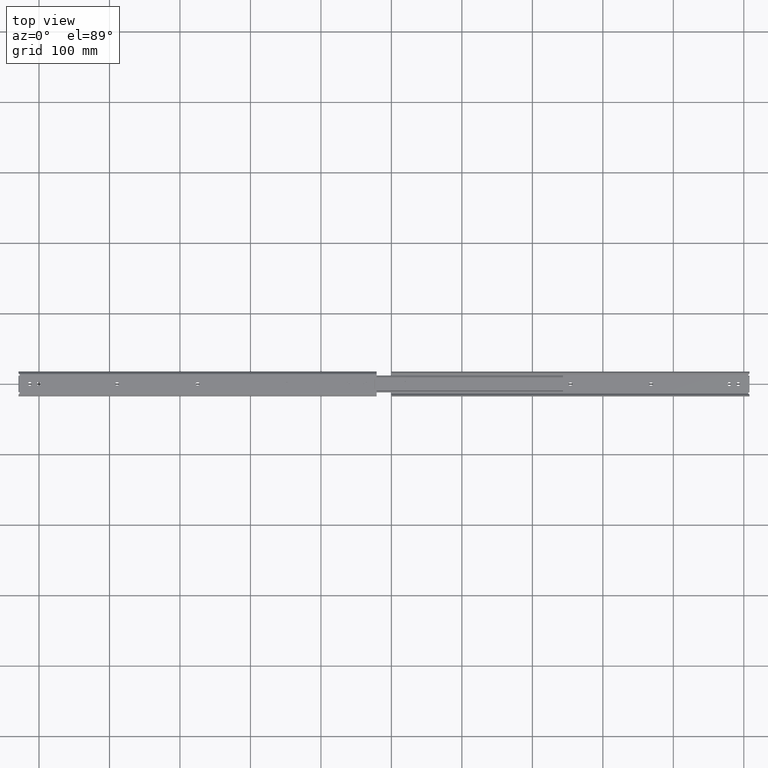
[diagram: clean part render]
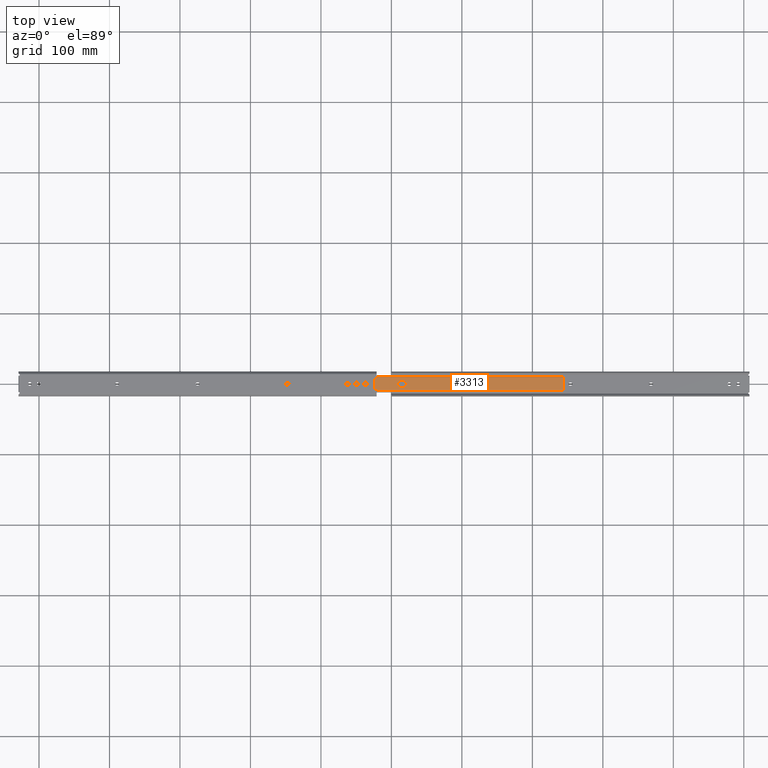
[diagram: same view with one face highlighted and labeled with its STEP entity id]
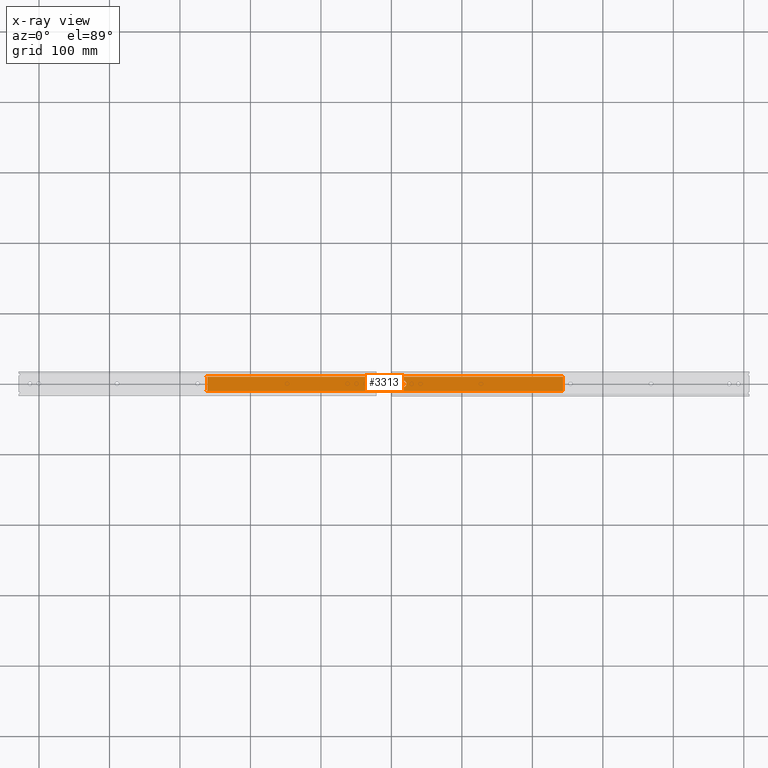
[diagram: x-ray of the same camera — body ghosted, the highlighted face saturated]
A machine part, top view. The second image highlights one B-rep face of the part: STEP entity #3313.
The next image is the same camera in x-ray: the body ghosted, the highlighted face saturated — about 0% of this face is hidden behind the body in this view.
In plain terms, the highlighted planar face has unit normal (0, 0, -1).
Its self-contained STEP definition (entity closure, byte-faithful):
#13 = AXIS2_PLACEMENT_3D ( 'NONE', #2778, #193, #2794 ) ;
#62 = VECTOR ( 'NONE', #1196, 1000.000000000000000 ) ;
#100 = ORIENTED_EDGE ( 'NONE', *, *, #1362, .T. ) ;
#193 = DIRECTION ( 'NONE',  ( 0.0000000000000000000, 6.982962677686266700E-015, -1.000000000000000000 ) ) ;
#283 = DIRECTION ( 'NONE',  ( 1.000000000000000000, -6.982962677686266700E-015, -4.876176775795935800E-029 ) ) ;
#284 = CARTESIAN_POINT ( 'NONE',  ( 37.49999999999995000, -4.750000000000057700, -7.999999999999739800 ) ) ;
#401 = EDGE_CURVE ( 'NONE', #4238, #3875, #676, .T. ) ;
#443 = VERTEX_POINT ( 'NONE', #497 ) ;
#468 = AXIS2_PLACEMENT_3D ( 'NONE', #1770, #4331, #2137 ) ;
#472 = EDGE_CURVE ( 'NONE', #2080, #2167, #1595, .T. ) ;
#497 = CARTESIAN_POINT ( 'NONE',  ( -241.9000000000001200, -9.699999999998132300, -7.999999999999774400 ) ) ;
#504 = VERTEX_POINT ( 'NONE', #3728 ) ;
#557 = EDGE_CURVE ( 'NONE', #3875, #2109, #3093, .T. ) ;
#577 = DIRECTION ( 'NONE',  ( 6.982962677686267500E-015, 1.000000000000000000, 6.982962677686267500E-015 ) ) ;
#623 = EDGE_CURVE ( 'NONE', #2167, #443, #2986, .T. ) ;
#665 = ORIENTED_EDGE ( 'NONE', *, *, #1288, .T. ) ;
#670 = ORIENTED_EDGE ( 'NONE', *, *, #3320, .T. ) ;
#676 = LINE ( 'NONE', #4096, #4480 ) ;
#732 = CARTESIAN_POINT ( 'NONE',  ( 264.4999999999998900, -10.32509259386357100, -7.999999999999779700 ) ) ;
#764 = CARTESIAN_POINT ( 'NONE',  ( -241.9000000000000100, 1.873927478161559500E-012, -7.999999999999706900 ) ) ;
#776 = DIRECTION ( 'NONE',  ( 6.982962677686267500E-015, 1.000000000000000000, 6.982962677686267500E-015 ) ) ;
#808 = FACE_BOUND ( 'NONE', #2073, .T. ) ;
#861 = VERTEX_POINT ( 'NONE', #2933 ) ;
#904 = DIRECTION ( 'NONE',  ( 6.982962677686267500E-015, 1.000000000000000000, 6.982962677686267500E-015 ) ) ;
#958 = EDGE_CURVE ( 'NONE', #2109, #2350, #2570, .T. ) ;
#965 = DIRECTION ( 'NONE',  ( -1.000000000000000000, 8.067164850171739600E-015, 5.633271106349179200E-029 ) ) ;
#977 = DIRECTION ( 'NONE',  ( -6.982962677686266700E-015, -1.000000000000000000, -6.982962677686266700E-015 ) ) ;
#983 = VECTOR ( 'NONE', #3677, 1000.000000000000000 ) ;
#1017 = CARTESIAN_POINT ( 'NONE',  ( -241.9000000000000100, -4.749999999998031800, -7.999999999999739800 ) ) ;
#1028 = CARTESIAN_POINT ( 'NONE',  ( -240.3000000000000700, -8.199999999998137700, -7.999999999999764600 ) ) ;
#1038 = EDGE_CURVE ( 'NONE', #4703, #443, #4056, .T. ) ;
#1111 = CARTESIAN_POINT ( 'NONE',  ( -241.9000000000001200, -10.32509259386003600, -7.999999999999779700 ) ) ;
#1145 = DIRECTION ( 'NONE',  ( 1.000000000000000000, -6.982962677686266700E-015, -4.876176775795935800E-029 ) ) ;
#1148 = DIRECTION ( 'NONE',  ( 1.000000000000000000, -7.254013220807639700E-015, -5.065450358434250000E-029 ) ) ;
#1161 = ORIENTED_EDGE ( 'NONE', *, *, #2100, .T. ) ;
#1172 = VECTOR ( 'NONE', #904, 1000.000000000000000 ) ;
#1196 = DIRECTION ( 'NONE',  ( -6.982962677686266700E-015, -1.000000000000000000, -6.982962677686266700E-015 ) ) ;
#1210 = VERTEX_POINT ( 'NONE', #732 ) ;
#1213 = ORIENTED_EDGE ( 'NONE', *, *, #3214, .F. ) ;
#1288 = EDGE_CURVE ( 'NONE', #3562, #2080, #2043, .T. ) ;
#1309 = ORIENTED_EDGE ( 'NONE', *, *, #623, .T. ) ;
#1362 = EDGE_CURVE ( 'NONE', #2350, #2713, #1691, .T. ) ;
#1478 = VECTOR ( 'NONE', #3034, 1000.000000000000000 ) ;
#1532 = CARTESIAN_POINT ( 'NONE',  ( -240.2999999999998400, 9.700000000001855600, -7.999999999999639400 ) ) ;
#1542 = ORIENTED_EDGE ( 'NONE', *, *, #2023, .T. ) ;
#1595 = LINE ( 'NONE', #1697, #1478 ) ;
#1668 = VERTEX_POINT ( 'NONE', #1918 ) ;
#1686 = CIRCLE ( 'NONE', #468, 4.750000000000000900 ) ;
#1691 = CIRCLE ( 'NONE', #2991, 4.750000000000000900 ) ;
#1697 = CARTESIAN_POINT ( 'NONE',  ( -240.2999999999999500, 1.862754737877261200E-012, -7.999999999999706900 ) ) ;
#1770 = CARTESIAN_POINT ( 'NONE',  ( 34.29999999999994000, -3.909835357832166500E-015, -7.999999999999706900 ) ) ;
#1806 = VECTOR ( 'NONE', #977, 1000.000000000000000 ) ;
#1862 = LINE ( 'NONE', #1111, #983 ) ;
#1886 = VECTOR ( 'NONE', #965, 1000.000000000000000 ) ;
#1918 = CARTESIAN_POINT ( 'NONE',  ( 264.5000000000000000, 10.32509259386024800, -7.999999999999634100 ) ) ;
#1944 = DIRECTION ( 'NONE',  ( 0.0000000000000000000, 6.982962677686266700E-015, -1.000000000000000000 ) ) ;
#1945 = DIRECTION ( 'NONE',  ( -1.000000000000000000, 6.982962677686269100E-015, 0.0000000000000000000 ) ) ;
#1958 = DIRECTION ( 'NONE',  ( -1.000000000000000000, 6.982962677686264300E-015, 0.0000000000000000000 ) ) ;
#2019 = AXIS2_PLACEMENT_3D ( 'NONE', #2054, #2265, #1945 ) ;
#2023 = EDGE_CURVE ( 'NONE', #3672, #3562, #4732, .T. ) ;
#2043 = LINE ( 'NONE', #3406, #62 ) ;
#2054 = CARTESIAN_POINT ( 'NONE',  ( 37.49999999999997900, -2.684314639001914600E-014, -7.999999999999706900 ) ) ;
#2057 = CARTESIAN_POINT ( 'NONE',  ( 34.29999999999996900, 4.749999999999964500, -7.999999999999674000 ) ) ;
#2073 = EDGE_LOOP ( 'NONE', ( #2954, #4355, #3005, #100, #1161 ) ) ;
#2080 = VERTEX_POINT ( 'NONE', #1028 ) ;
#2094 = VECTOR ( 'NONE', #776, 1000.000000000000000 ) ;
#2100 = EDGE_CURVE ( 'NONE', #2713, #4238, #1686, .T. ) ;
#2109 = VERTEX_POINT ( 'NONE', #284 ) ;
#2125 = ORIENTED_EDGE ( 'NONE', *, *, #1038, .F. ) ;
#2127 = LINE ( 'NONE', #4194, #1172 ) ;
#2136 = CARTESIAN_POINT ( 'NONE',  ( -241.8999999999998900, 9.700000000001864500, -7.999999999999639400 ) ) ;
#2137 = DIRECTION ( 'NONE',  ( -1.000000000000000000, 6.982962677686264300E-015, 0.0000000000000000000 ) ) ;
#2167 = VERTEX_POINT ( 'NONE', #3656 ) ;
#2171 = ORIENTED_EDGE ( 'NONE', *, *, #472, .T. ) ;
#2265 = DIRECTION ( 'NONE',  ( 0.0000000000000000000, 6.982962677686266700E-015, -1.000000000000000000 ) ) ;
#2350 = VERTEX_POINT ( 'NONE', #3119 ) ;
#2410 = PLANE ( 'NONE',  #13 ) ;
#2469 = VECTOR ( 'NONE', #283, 1000.000000000000000 ) ;
#2570 = LINE ( 'NONE', #1017, #3326 ) ;
#2599 = CARTESIAN_POINT ( 'NONE',  ( 37.50000000000000700, 4.749999999999941400, -7.999999999999674000 ) ) ;
#2606 = CARTESIAN_POINT ( 'NONE',  ( -241.8999999999998900, 10.32509259386378500, -7.999999999999634100 ) ) ;
#2619 = CARTESIAN_POINT ( 'NONE',  ( 29.54999999999994000, 3.484560750332767100E-014, -7.999999999999706900 ) ) ;
#2626 = EDGE_CURVE ( 'NONE', #4703, #1210, #1862, .T. ) ;
#2659 = VECTOR ( 'NONE', #577, 1000.000000000000000 ) ;
#2691 = EDGE_CURVE ( 'NONE', #504, #1668, #3581, .T. ) ;
#2713 = VERTEX_POINT ( 'NONE', #2619 ) ;
#2778 = CARTESIAN_POINT ( 'NONE',  ( -241.9000000000000100, 1.873927478161559500E-012, -7.999999999999706900 ) ) ;
#2794 = DIRECTION ( 'NONE',  ( -1.000000000000000000, 6.982962677686266700E-015, 4.876176775795935800E-029 ) ) ;
#2933 = CARTESIAN_POINT ( 'NONE',  ( -241.8999999999998900, 9.700000000001860900, -7.999999999999639400 ) ) ;
#2954 = ORIENTED_EDGE ( 'NONE', *, *, #401, .T. ) ;
#2986 = LINE ( 'NONE', #3411, #1886 ) ;
#2991 = AXIS2_PLACEMENT_3D ( 'NONE', #3091, #1944, #1958 ) ;
#3005 = ORIENTED_EDGE ( 'NONE', *, *, #958, .T. ) ;
#3034 = DIRECTION ( 'NONE',  ( -6.982962677686266700E-015, -1.000000000000000000, -6.982962677686266700E-015 ) ) ;
#3091 = CARTESIAN_POINT ( 'NONE',  ( 34.29999999999994000, -3.909835357832166500E-015, -7.999999999999706900 ) ) ;
#3093 = CIRCLE ( 'NONE', #2019, 4.749999999999997300 ) ;
#3119 = CARTESIAN_POINT ( 'NONE',  ( 34.29999999999991200, -4.750000000000035500, -7.999999999999739800 ) ) ;
#3130 = EDGE_CURVE ( 'NONE', #861, #3672, #4433, .T. ) ;
#3160 = CARTESIAN_POINT ( 'NONE',  ( 264.4999999999999400, -1.662244821818765700E-012, -7.999999999999706900 ) ) ;
#3214 = EDGE_CURVE ( 'NONE', #861, #504, #2127, .T. ) ;
#3313 = ADVANCED_FACE ( 'NONE', ( #808, #3745 ), #2410, .F. ) ;
#3320 = EDGE_CURVE ( 'NONE', #1210, #1668, #3628, .T. ) ;
#3326 = VECTOR ( 'NONE', #3986, 1000.000000000000000 ) ;
#3406 = CARTESIAN_POINT ( 'NONE',  ( -240.2999999999999500, 1.862754737877261200E-012, -7.999999999999706900 ) ) ;
#3411 = CARTESIAN_POINT ( 'NONE',  ( -241.9000000000001200, -9.699999999998132300, -7.999999999999774400 ) ) ;
#3500 = ORIENTED_EDGE ( 'NONE', *, *, #2626, .T. ) ;
#3562 = VERTEX_POINT ( 'NONE', #4403 ) ;
#3581 = LINE ( 'NONE', #2606, #4557 ) ;
#3628 = LINE ( 'NONE', #3160, #2659 ) ;
#3656 = CARTESIAN_POINT ( 'NONE',  ( -240.3000000000000700, -9.699999999998144800, -7.999999999999774400 ) ) ;
#3672 = VERTEX_POINT ( 'NONE', #1532 ) ;
#3677 = DIRECTION ( 'NONE',  ( 1.000000000000000000, -6.982962677686266700E-015, -4.876176775795935800E-029 ) ) ;
#3728 = CARTESIAN_POINT ( 'NONE',  ( -241.8999999999998900, 10.32509259386378500, -7.999999999999634100 ) ) ;
#3745 = FACE_OUTER_BOUND ( 'NONE', #4302, .T. ) ;
#3838 = ORIENTED_EDGE ( 'NONE', *, *, #3130, .T. ) ;
#3875 = VERTEX_POINT ( 'NONE', #2599 ) ;
#3986 = DIRECTION ( 'NONE',  ( -1.000000000000000000, 7.254013220807639700E-015, 5.065450358434250000E-029 ) ) ;
#4056 = LINE ( 'NONE', #764, #2094 ) ;
#4082 = ORIENTED_EDGE ( 'NONE', *, *, #2691, .F. ) ;
#4096 = CARTESIAN_POINT ( 'NONE',  ( -241.9000000000000100, 4.750000000001968200, -7.999999999999674000 ) ) ;
#4194 = CARTESIAN_POINT ( 'NONE',  ( -241.9000000000000100, 1.873927478161559500E-012, -7.999999999999706900 ) ) ;
#4238 = VERTEX_POINT ( 'NONE', #2057 ) ;
#4302 = EDGE_LOOP ( 'NONE', ( #1542, #665, #2171, #1309, #2125, #3500, #670, #4082, #1213, #3838 ) ) ;
#4331 = DIRECTION ( 'NONE',  ( 0.0000000000000000000, 6.982962677686266700E-015, -1.000000000000000000 ) ) ;
#4355 = ORIENTED_EDGE ( 'NONE', *, *, #557, .T. ) ;
#4387 = CARTESIAN_POINT ( 'NONE',  ( -240.2999999999999500, 1.862754737877261200E-012, -7.999999999999706900 ) ) ;
#4403 = CARTESIAN_POINT ( 'NONE',  ( -240.2999999999998400, 8.200000000001862700, -7.999999999999650100 ) ) ;
#4416 = CARTESIAN_POINT ( 'NONE',  ( -241.9000000000001200, -10.32509259386003600, -7.999999999999779700 ) ) ;
#4433 = LINE ( 'NONE', #2136, #2469 ) ;
#4480 = VECTOR ( 'NONE', #1148, 1000.000000000000000 ) ;
#4557 = VECTOR ( 'NONE', #1145, 1000.000000000000000 ) ;
#4703 = VERTEX_POINT ( 'NONE', #4416 ) ;
#4732 = LINE ( 'NONE', #4387, #1806 ) ;